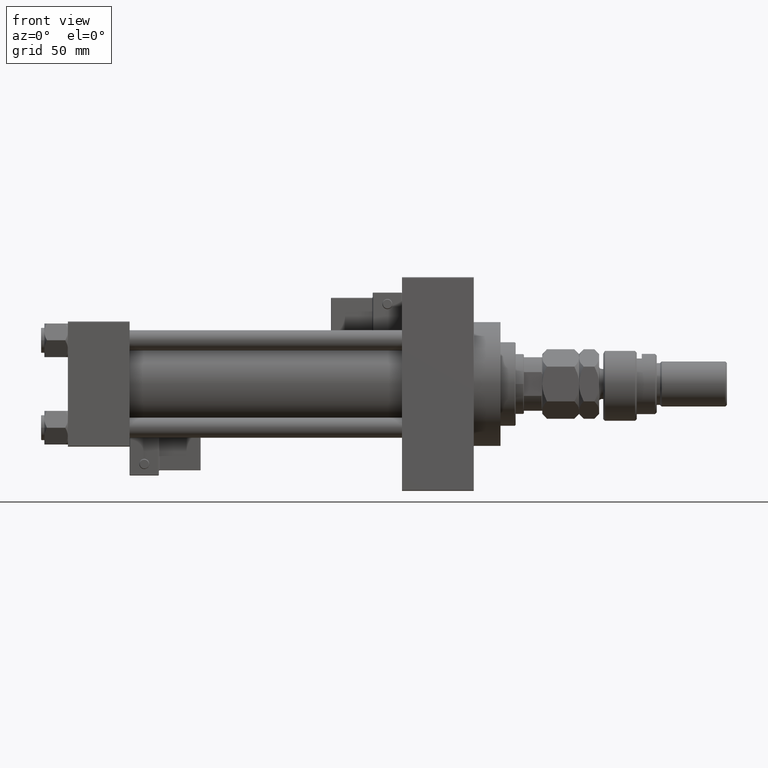
[diagram: clean part render]
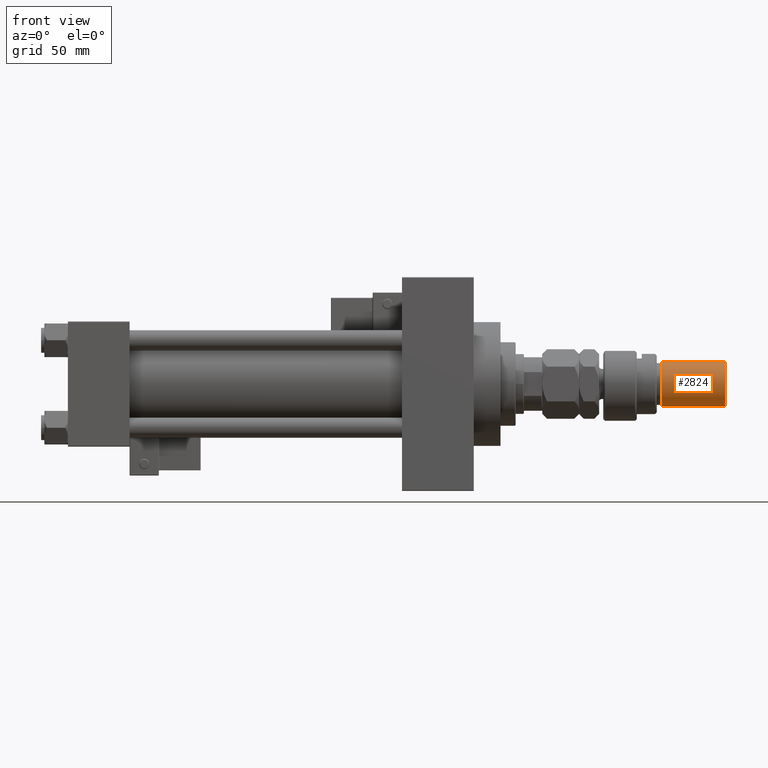
[diagram: same view with one face highlighted and labeled with its STEP entity id]
A machine part, front view. The second image highlights one B-rep face of the part: STEP entity #2824.
In plain terms, the highlighted cylindrical surface (edge-blend (fillet) strip) has radius 13.5 mm, axis along (-1, -0, 0).
Its self-contained STEP definition (entity closure, byte-faithful):
#480 = CYLINDRICAL_SURFACE ( 'NONE', #11668, 13.50000000000000000 ) ;
#1258 = DIRECTION ( 'NONE',  ( -0.000000000000000000, -0.000000000000000000, -1.000000000000000000 ) ) ;
#1806 = DIRECTION ( 'NONE',  ( 1.000000000000000000, 0.000000000000000000, 0.000000000000000000 ) ) ;
#2259 = CARTESIAN_POINT ( 'NONE',  ( 13.50000000000000000, 1.653273178848926867E-15, 73.00000000000001421 ) ) ;
#2824 = ADVANCED_FACE ( 'NONE', ( #52153 ), #480, .T. ) ;
#6168 = DIRECTION ( 'NONE',  ( -0.000000000000000000, -0.000000000000000000, -1.000000000000000000 ) ) ;
#7303 = VERTEX_POINT ( 'NONE', #21702 ) ;
#9558 = CARTESIAN_POINT ( 'NONE',  ( 13.50000000000000000, 1.653273178848926867E-15, 34.99999999999999289 ) ) ;
#11668 = AXIS2_PLACEMENT_3D ( 'NONE', #47471, #26185, #17353 ) ;
#12599 = ORIENTED_EDGE ( 'NONE', *, *, #42903, .T. ) ;
#14303 = EDGE_CURVE ( 'NONE', #7303, #37499, #50797, .T. ) ;
#14731 = CARTESIAN_POINT ( 'NONE',  ( -13.50000000000000000, 0.000000000000000000, 74.00000000000001421 ) ) ;
#15085 = CARTESIAN_POINT ( 'NONE',  ( -13.50000000000000000, 0.000000000000000000, 73.00000000000001421 ) ) ;
#16695 = EDGE_LOOP ( 'NONE', ( #20540, #12599, #53095, #20962 ) ) ;
#17353 = DIRECTION ( 'NONE',  ( -1.000000000000000000, 0.000000000000000000, 0.000000000000000000 ) ) ;
#18350 = LINE ( 'NONE', #14731, #44441 ) ;
#19493 = DIRECTION ( 'NONE',  ( 1.000000000000000000, 0.000000000000000000, 0.000000000000000000 ) ) ;
#20540 = ORIENTED_EDGE ( 'NONE', *, *, #42887, .F. ) ;
#20962 = ORIENTED_EDGE ( 'NONE', *, *, #14303, .T. ) ;
#21702 = CARTESIAN_POINT ( 'NONE',  ( -13.50000000000000000, 0.000000000000000000, 34.99999999999999289 ) ) ;
#26185 = DIRECTION ( 'NONE',  ( -0.000000000000000000, -0.000000000000000000, -1.000000000000000000 ) ) ;
#27236 = VERTEX_POINT ( 'NONE', #15085 ) ;
#31659 = DIRECTION ( 'NONE',  ( -0.000000000000000000, -0.000000000000000000, 1.000000000000000000 ) ) ;
#32195 = CARTESIAN_POINT ( 'NONE',  ( 0.000000000000000000, 0.000000000000000000, 34.99999999999999289 ) ) ;
#35526 = DIRECTION ( 'NONE',  ( 0.000000000000000000, 0.000000000000000000, -1.000000000000000000 ) ) ;
#35908 = VERTEX_POINT ( 'NONE', #2259 ) ;
#37499 = VERTEX_POINT ( 'NONE', #9558 ) ;
#41328 = CIRCLE ( 'NONE', #53694, 13.50000000000000000 ) ;
#42887 = EDGE_CURVE ( 'NONE', #35908, #37499, #43537, .T. ) ;
#42903 = EDGE_CURVE ( 'NONE', #35908, #27236, #41328, .T. ) ;
#43537 = LINE ( 'NONE', #51569, #43964 ) ;
#43964 = VECTOR ( 'NONE', #1258, 1000.000000000000000 ) ;
#44441 = VECTOR ( 'NONE', #6168, 1000.000000000000000 ) ;
#47438 = CARTESIAN_POINT ( 'NONE',  ( 0.000000000000000000, 0.000000000000000000, 73.00000000000001421 ) ) ;
#47471 = CARTESIAN_POINT ( 'NONE',  ( 0.000000000000000000, 0.000000000000000000, 74.00000000000001421 ) ) ;
#49917 = EDGE_CURVE ( 'NONE', #27236, #7303, #18350, .T. ) ;
#50797 = CIRCLE ( 'NONE', #53423, 13.50000000000000000 ) ;
#51569 = CARTESIAN_POINT ( 'NONE',  ( 13.50000000000000000, 1.653273178848926867E-15, 74.00000000000001421 ) ) ;
#52153 = FACE_OUTER_BOUND ( 'NONE', #16695, .T. ) ;
#53095 = ORIENTED_EDGE ( 'NONE', *, *, #49917, .T. ) ;
#53423 = AXIS2_PLACEMENT_3D ( 'NONE', #32195, #31659, #19493 ) ;
#53694 = AXIS2_PLACEMENT_3D ( 'NONE', #47438, #35526, #1806 ) ;